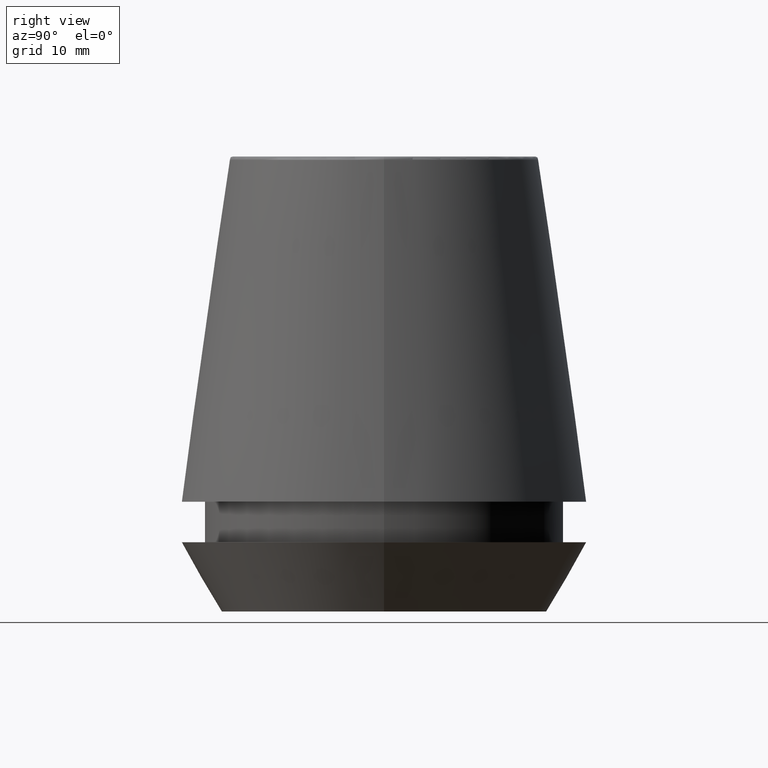
[diagram: clean part render]
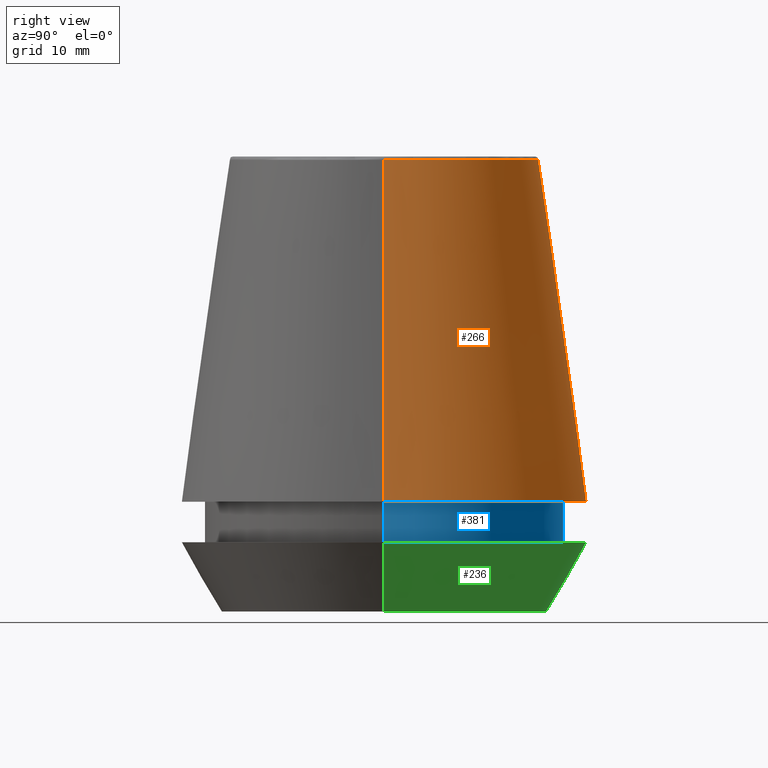
[diagram: same view with three faces highlighted in distinct colors, each labeled with its STEP entity id]
A machine part, right view with three faces highlighted in distinct colors.
Their STEP definitions:

[orange] entity #266 — the highlighted conical surface has half-angle 8 deg.
#13 = DIRECTION ( 'NONE',  ( 1.000000000000000000, 0.0000000000000000000, 0.0000000000000000000 ) ) ;
#17 = FACE_OUTER_BOUND ( 'NONE', #155, .T. ) ;
#29 = ORIENTED_EDGE ( 'NONE', *, *, #306, .F. ) ;
#32 = CARTESIAN_POINT ( 'NONE',  ( 0.0000000000000000000, 0.0000000000000000000, 11.09999999999999800 ) ) ;
#52 = AXIS2_PLACEMENT_3D ( 'NONE', #182, #214, #13 ) ;
#74 = VERTEX_POINT ( 'NONE', #310 ) ;
#92 = ORIENTED_EDGE ( 'NONE', *, *, #175, .T. ) ;
#94 = VERTEX_POINT ( 'NONE', #173 ) ;
#103 = LINE ( 'NONE', #373, #292 ) ;
#104 = CARTESIAN_POINT ( 'NONE',  ( -15.64384277279740400, 0.0000000000000000000, 45.65566924038402900 ) ) ;
#155 = EDGE_LOOP ( 'NONE', ( #337, #200, #92, #29 ) ) ;
#160 = VERTEX_POINT ( 'NONE', #104 ) ;
#166 = CONICAL_SURFACE ( 'NONE', #321, 20.50032537154048700, 0.1396263401595396200 ) ;
#173 = CARTESIAN_POINT ( 'NONE',  ( 20.50032537154048700, 2.510565784773633700E-015, 11.09999999999999800 ) ) ;
#175 = EDGE_CURVE ( 'NONE', #94, #74, #340, .T. ) ;
#177 = DIRECTION ( 'NONE',  ( -1.000000000000000000, 0.0000000000000000000, 0.0000000000000000000 ) ) ;
#182 = CARTESIAN_POINT ( 'NONE',  ( 0.0000000000000000000, 0.0000000000000000000, 45.65566924038402900 ) ) ;
#184 = CARTESIAN_POINT ( 'NONE',  ( 15.64384277279740400, 2.213191991290356800E-015, 45.65566924038402900 ) ) ;
#200 = ORIENTED_EDGE ( 'NONE', *, *, #212, .T. ) ;
#211 = LINE ( 'NONE', #304, #241 ) ;
#212 = EDGE_CURVE ( 'NONE', #269, #94, #211, .T. ) ;
#214 = DIRECTION ( 'NONE',  ( -0.0000000000000000000, -0.0000000000000000000, 1.000000000000000000 ) ) ;
#219 = DIRECTION ( 'NONE',  ( -0.1391731009600587200, 0.0000000000000000000, -0.9902680687415712500 ) ) ;
#226 = CARTESIAN_POINT ( 'NONE',  ( 0.0000000000000000000, 0.0000000000000000000, 11.09999999999999800 ) ) ;
#241 = VECTOR ( 'NONE', #305, 1000.000000000000000 ) ;
#266 = ADVANCED_FACE ( 'NONE', ( #17 ), #166, .T. ) ;
#269 = VERTEX_POINT ( 'NONE', #184 ) ;
#272 = DIRECTION ( 'NONE',  ( 0.0000000000000000000, 0.0000000000000000000, -1.000000000000000000 ) ) ;
#278 = AXIS2_PLACEMENT_3D ( 'NONE', #226, #287, #378 ) ;
#287 = DIRECTION ( 'NONE',  ( -0.0000000000000000000, -0.0000000000000000000, 1.000000000000000000 ) ) ;
#292 = VECTOR ( 'NONE', #219, 1000.000000000000000 ) ;
#298 = CIRCLE ( 'NONE', #52, 15.64384277279740400 ) ;
#304 = CARTESIAN_POINT ( 'NONE',  ( 20.50032537154048700, 2.510565784773633700E-015, 11.09999999999999800 ) ) ;
#305 = DIRECTION ( 'NONE',  ( 0.1391731009600587200, 1.704378926181473400E-017, -0.9902680687415712500 ) ) ;
#306 = EDGE_CURVE ( 'NONE', #160, #74, #103, .T. ) ;
#310 = CARTESIAN_POINT ( 'NONE',  ( -20.50032537154048700, 0.0000000000000000000, 11.09999999999999800 ) ) ;
#321 = AXIS2_PLACEMENT_3D ( 'NONE', #32, #272, #177 ) ;
#337 = ORIENTED_EDGE ( 'NONE', *, *, #369, .F. ) ;
#340 = CIRCLE ( 'NONE', #278, 20.50032537154048700 ) ;
#369 = EDGE_CURVE ( 'NONE', #269, #160, #298, .T. ) ;
#373 = CARTESIAN_POINT ( 'NONE',  ( -20.50032537154048700, 0.0000000000000000000, 11.09999999999999800 ) ) ;
#378 = DIRECTION ( 'NONE',  ( 1.000000000000000000, 0.0000000000000000000, 0.0000000000000000000 ) ) ;

[blue] entity #381 — the highlighted cylindrical surface (partial cylindrical patch) has radius 18.1 mm, axis along (-0, -0, 1).
#5 = CARTESIAN_POINT ( 'NONE',  ( 18.10000000000000500, 0.0000000000000000000, 11.09999999999999800 ) ) ;
#21 = DIRECTION ( 'NONE',  ( 1.000000000000000000, 0.0000000000000000000, 0.0000000000000000000 ) ) ;
#39 = AXIS2_PLACEMENT_3D ( 'NONE', #270, #362, #316 ) ;
#45 = VECTOR ( 'NONE', #233, 1000.000000000000000 ) ;
#70 = AXIS2_PLACEMENT_3D ( 'NONE', #375, #302, #21 ) ;
#82 = CARTESIAN_POINT ( 'NONE',  ( -18.10000000000000500, 2.216610706456710000E-015, 46.00000000000000000 ) ) ;
#88 = ORIENTED_EDGE ( 'NONE', *, *, #221, .F. ) ;
#99 = EDGE_LOOP ( 'NONE', ( #107, #213, #88, #326 ) ) ;
#107 = ORIENTED_EDGE ( 'NONE', *, *, #346, .T. ) ;
#109 = LINE ( 'NONE', #291, #45 ) ;
#114 = VERTEX_POINT ( 'NONE', #265 ) ;
#123 = DIRECTION ( 'NONE',  ( 1.000000000000000000, 0.0000000000000000000, 0.0000000000000000000 ) ) ;
#125 = EDGE_CURVE ( 'NONE', #319, #243, #109, .T. ) ;
#127 = CIRCLE ( 'NONE', #70, 18.10000000000000500 ) ;
#128 = DIRECTION ( 'NONE',  ( -0.0000000000000000000, -0.0000000000000000000, 1.000000000000000000 ) ) ;
#168 = CARTESIAN_POINT ( 'NONE',  ( -18.10000000000000500, 2.216610706456710000E-015, 11.09999999999999800 ) ) ;
#172 = VERTEX_POINT ( 'NONE', #168 ) ;
#193 = CARTESIAN_POINT ( 'NONE',  ( 0.0000000000000000000, 0.0000000000000000000, 46.00000000000000000 ) ) ;
#208 = CYLINDRICAL_SURFACE ( 'NONE', #335, 18.10000000000000500 ) ;
#213 = ORIENTED_EDGE ( 'NONE', *, *, #297, .T. ) ;
#221 = EDGE_CURVE ( 'NONE', #243, #172, #127, .T. ) ;
#232 = LINE ( 'NONE', #82, #344 ) ;
#233 = DIRECTION ( 'NONE',  ( -0.0000000000000000000, -0.0000000000000000000, 1.000000000000000000 ) ) ;
#240 = FACE_OUTER_BOUND ( 'NONE', #99, .T. ) ;
#243 = VERTEX_POINT ( 'NONE', #5 ) ;
#265 = CARTESIAN_POINT ( 'NONE',  ( -18.10000000000000100, 2.216610706456709600E-015, 6.999999999999999100 ) ) ;
#270 = CARTESIAN_POINT ( 'NONE',  ( 0.0000000000000000000, 0.0000000000000000000, 6.999999999999999100 ) ) ;
#289 = DIRECTION ( 'NONE',  ( -0.0000000000000000000, -0.0000000000000000000, 1.000000000000000000 ) ) ;
#291 = CARTESIAN_POINT ( 'NONE',  ( 18.10000000000000500, 0.0000000000000000000, 46.00000000000000000 ) ) ;
#297 = EDGE_CURVE ( 'NONE', #114, #172, #232, .T. ) ;
#302 = DIRECTION ( 'NONE',  ( -0.0000000000000000000, -0.0000000000000000000, 1.000000000000000000 ) ) ;
#316 = DIRECTION ( 'NONE',  ( 1.000000000000000000, 0.0000000000000000000, 0.0000000000000000000 ) ) ;
#318 = CIRCLE ( 'NONE', #39, 18.10000000000000100 ) ;
#319 = VERTEX_POINT ( 'NONE', #350 ) ;
#326 = ORIENTED_EDGE ( 'NONE', *, *, #125, .F. ) ;
#335 = AXIS2_PLACEMENT_3D ( 'NONE', #193, #289, #123 ) ;
#344 = VECTOR ( 'NONE', #128, 1000.000000000000000 ) ;
#346 = EDGE_CURVE ( 'NONE', #319, #114, #318, .T. ) ;
#350 = CARTESIAN_POINT ( 'NONE',  ( 18.10000000000000100, 0.0000000000000000000, 6.999999999999999100 ) ) ;
#362 = DIRECTION ( 'NONE',  ( -0.0000000000000000000, -0.0000000000000000000, 1.000000000000000000 ) ) ;
#375 = CARTESIAN_POINT ( 'NONE',  ( 0.0000000000000000000, 0.0000000000000000000, 11.09999999999999800 ) ) ;
#381 = ADVANCED_FACE ( 'NONE', ( #240 ), #208, .T. ) ;

[green] entity #236 — the highlighted conical surface has half-angle 30 deg.
#1 = VECTOR ( 'NONE', #119, 1000.000000000000000 ) ;
#2 = CIRCLE ( 'NONE', #41, 16.45854811567268100 ) ;
#4 = AXIS2_PLACEMENT_3D ( 'NONE', #329, #192, #379 ) ;
#8 = VECTOR ( 'NONE', #197, 1000.000000000000000 ) ;
#38 = VERTEX_POINT ( 'NONE', #108 ) ;
#41 = AXIS2_PLACEMENT_3D ( 'NONE', #248, #136, #195 ) ;
#50 = VERTEX_POINT ( 'NONE', #314 ) ;
#64 = CARTESIAN_POINT ( 'NONE',  ( -16.45854811567268100, 2.263058382549599700E-015, 0.0000000000000000000 ) ) ;
#77 = ORIENTED_EDGE ( 'NONE', *, *, #164, .F. ) ;
#78 = EDGE_CURVE ( 'NONE', #336, #38, #194, .T. ) ;
#108 = CARTESIAN_POINT ( 'NONE',  ( -20.50000000000000000, 2.510525938252074100E-015, 7.000000000000006200 ) ) ;
#119 = DIRECTION ( 'NONE',  ( -0.4999999999999941700, 6.123233995736694500E-017, 0.8660254037844420400 ) ) ;
#136 = DIRECTION ( 'NONE',  ( -0.0000000000000000000, -0.0000000000000000000, 1.000000000000000000 ) ) ;
#141 = DIRECTION ( 'NONE',  ( -0.0000000000000000000, -0.0000000000000000000, 1.000000000000000000 ) ) ;
#144 = CARTESIAN_POINT ( 'NONE',  ( 16.45854811567268100, 0.0000000000000000000, 0.0000000000000000000 ) ) ;
#164 = EDGE_CURVE ( 'NONE', #222, #38, #324, .T. ) ;
#192 = DIRECTION ( 'NONE',  ( -0.0000000000000000000, -0.0000000000000000000, 1.000000000000000000 ) ) ;
#194 = LINE ( 'NONE', #386, #1 ) ;
#195 = DIRECTION ( 'NONE',  ( 1.000000000000000000, 0.0000000000000000000, 0.0000000000000000000 ) ) ;
#197 = DIRECTION ( 'NONE',  ( 0.4999999999999941700, 0.0000000000000000000, 0.8660254037844420400 ) ) ;
#220 = FACE_OUTER_BOUND ( 'NONE', #363, .T. ) ;
#222 = VERTEX_POINT ( 'NONE', #263 ) ;
#225 = DIRECTION ( 'NONE',  ( 1.000000000000000000, 0.0000000000000000000, 0.0000000000000000000 ) ) ;
#235 = ORIENTED_EDGE ( 'NONE', *, *, #322, .T. ) ;
#236 = ADVANCED_FACE ( 'NONE', ( #220 ), #252, .T. ) ;
#247 = AXIS2_PLACEMENT_3D ( 'NONE', #257, #141, #225 ) ;
#248 = CARTESIAN_POINT ( 'NONE',  ( 0.0000000000000000000, 0.0000000000000000000, 0.0000000000000000000 ) ) ;
#252 = CONICAL_SURFACE ( 'NONE', #247, 16.45854811567268100, 0.5235987755982921500 ) ;
#254 = ORIENTED_EDGE ( 'NONE', *, *, #78, .T. ) ;
#257 = CARTESIAN_POINT ( 'NONE',  ( 0.0000000000000000000, 0.0000000000000000000, 0.0000000000000000000 ) ) ;
#263 = CARTESIAN_POINT ( 'NONE',  ( 20.50000000000000000, 0.0000000000000000000, 7.000000000000006200 ) ) ;
#314 = CARTESIAN_POINT ( 'NONE',  ( 16.45854811567268100, 0.0000000000000000000, 0.0000000000000000000 ) ) ;
#315 = EDGE_CURVE ( 'NONE', #50, #222, #353, .T. ) ;
#322 = EDGE_CURVE ( 'NONE', #50, #336, #2, .T. ) ;
#324 = CIRCLE ( 'NONE', #4, 20.50000000000000000 ) ;
#329 = CARTESIAN_POINT ( 'NONE',  ( 0.0000000000000000000, 0.0000000000000000000, 7.000000000000006200 ) ) ;
#331 = ORIENTED_EDGE ( 'NONE', *, *, #315, .F. ) ;
#336 = VERTEX_POINT ( 'NONE', #64 ) ;
#353 = LINE ( 'NONE', #144, #8 ) ;
#363 = EDGE_LOOP ( 'NONE', ( #235, #254, #77, #331 ) ) ;
#379 = DIRECTION ( 'NONE',  ( 1.000000000000000000, 0.0000000000000000000, 0.0000000000000000000 ) ) ;
#386 = CARTESIAN_POINT ( 'NONE',  ( -16.45854811567268100, 2.015590826847124800E-015, 0.0000000000000000000 ) ) ;